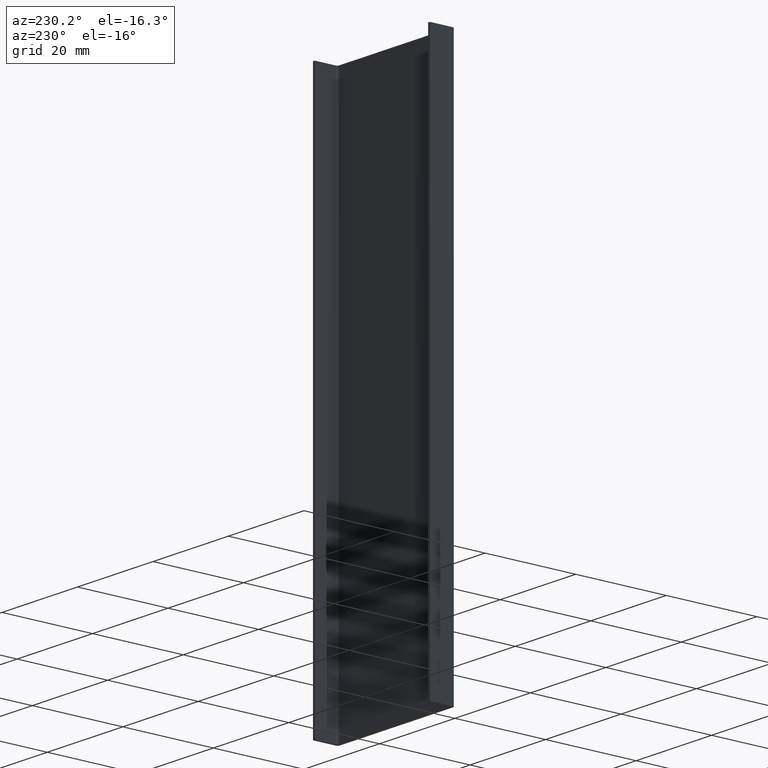
[diagram: clean part render]
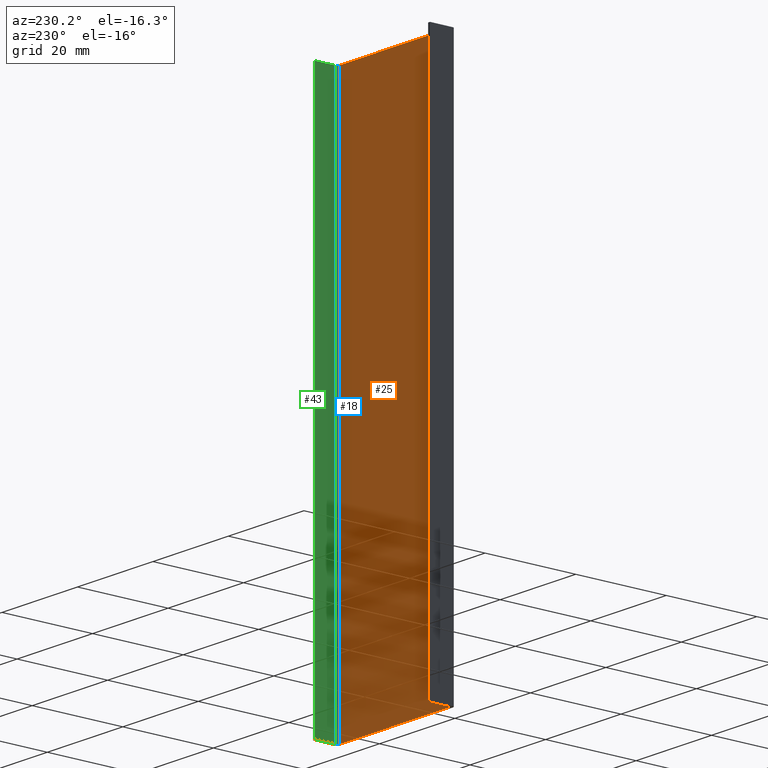
[diagram: same view with three faces highlighted in distinct colors, each labeled with its STEP entity id]
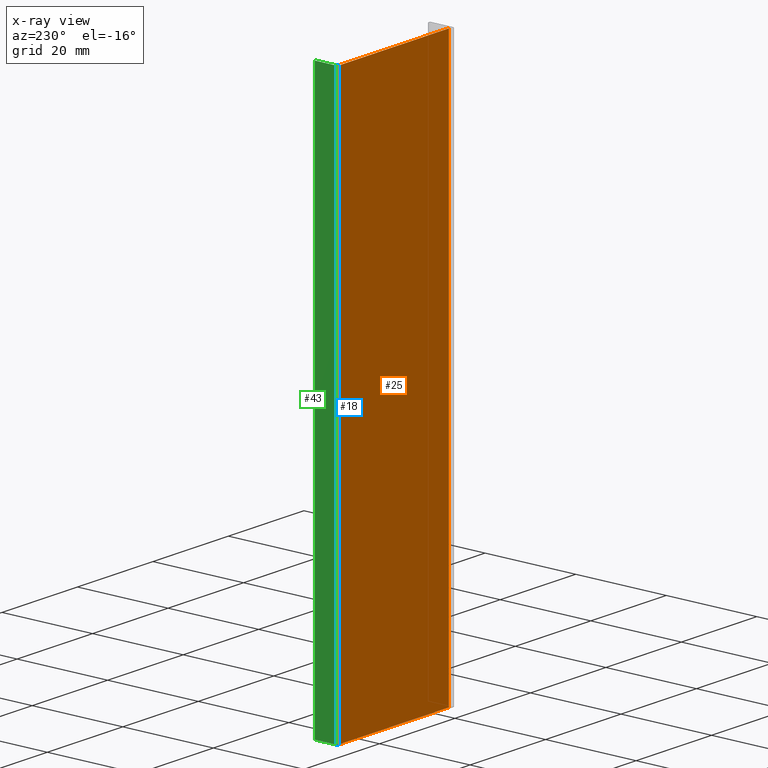
[diagram: x-ray of the same camera — body ghosted, the three highlighted faces saturated]
A machine part, auxiliary view with three faces highlighted in distinct colors.
The next image is the same camera in x-ray (body ghosted, the three faces saturated) — at least one of them is partly hidden behind the body in this view.
Their STEP definitions:

[orange] entity #25 — the highlighted planar face has unit normal (-0.0001, -1, 0).
#25 = ADVANCED_FACE ( 'NONE', ( #357 ), #360, .F. ) ;
#27 = EDGE_CURVE ( 'NONE', #239, #272, #376, .T. ) ;
#31 = EDGE_CURVE ( 'NONE', #261, #243, #413, .T. ) ;
#38 = EDGE_CURVE ( 'NONE', #239, #261, #433, .T. ) ;
#51 = EDGE_CURVE ( 'NONE', #272, #243, #470, .T. ) ;
#90 = VECTOR ( 'NONE', #415, 1000.000000000000000 ) ;
#91 = VECTOR ( 'NONE', #472, 1000.000000000000000 ) ;
#94 = VECTOR ( 'NONE', #380, 1000.000000000000000 ) ;
#133 = AXIS2_PLACEMENT_3D ( 'NONE', #385, #368, #361 ) ;
#139 = VECTOR ( 'NONE', #437, 1000.000000000000000 ) ;
#165 = EDGE_LOOP ( 'NONE', ( #186, #274, #289, #276 ) ) ;
#186 = ORIENTED_EDGE ( 'NONE', *, *, #51, .T. ) ;
#239 = VERTEX_POINT ( 'NONE', #480 ) ;
#243 = VERTEX_POINT ( 'NONE', #494 ) ;
#261 = VERTEX_POINT ( 'NONE', #499 ) ;
#272 = VERTEX_POINT ( 'NONE', #540 ) ;
#274 = ORIENTED_EDGE ( 'NONE', *, *, #31, .F. ) ;
#276 = ORIENTED_EDGE ( 'NONE', *, *, #27, .T. ) ;
#289 = ORIENTED_EDGE ( 'NONE', *, *, #38, .F. ) ;
#357 = FACE_OUTER_BOUND ( 'NONE', #165, .T. ) ;
#360 = PLANE ( 'NONE',  #133 ) ;
#361 = DIRECTION ( 'NONE',  ( 0.9999999964123750300, -8.470684716469725100E-005, 0.0000000000000000000 ) ) ;
#368 = DIRECTION ( 'NONE',  ( -8.470684716469725100E-005, -0.9999999964123750300, 0.0000000000000000000 ) ) ;
#376 = LINE ( 'NONE', #377, #94 ) ;
#377 = CARTESIAN_POINT ( 'NONE',  ( 29.50004224758863100, 0.9098789655736769800, 120.0000000000000000 ) ) ;
#380 = DIRECTION ( 'NONE',  ( -0.0000000000000000000, -0.0000000000000000000, -1.000000000000000000 ) ) ;
#385 = CARTESIAN_POINT ( 'NONE',  ( 29.50004224758863100, 0.9098789655736769800, 120.0000000000000000 ) ) ;
#400 = CARTESIAN_POINT ( 'NONE',  ( 0.5000423516297531900, 0.9123354641414698200, 120.0000000000000000 ) ) ;
#413 = LINE ( 'NONE', #400, #90 ) ;
#415 = DIRECTION ( 'NONE',  ( -0.0000000000000000000, -0.0000000000000000000, -1.000000000000000000 ) ) ;
#433 = LINE ( 'NONE', #434, #139 ) ;
#434 = CARTESIAN_POINT ( 'NONE',  ( 29.50004224758863100, 0.9098789655736769800, 120.0000000000000000 ) ) ;
#437 = DIRECTION ( 'NONE',  ( -0.9999999964123750300, 8.470684716469725100E-005, 0.0000000000000000000 ) ) ;
#470 = LINE ( 'NONE', #471, #91 ) ;
#471 = CARTESIAN_POINT ( 'NONE',  ( 29.50004224758863100, 0.9098789655736769800, 0.0000000000000000000 ) ) ;
#472 = DIRECTION ( 'NONE',  ( -0.9999999964123750300, 8.470684716469725100E-005, 0.0000000000000000000 ) ) ;
#480 = CARTESIAN_POINT ( 'NONE',  ( 29.50004224758863100, 0.9098789655736769800, 120.0000000000000000 ) ) ;
#494 = CARTESIAN_POINT ( 'NONE',  ( 0.5000423516297531900, 0.9123354641414698200, 0.0000000000000000000 ) ) ;
#499 = CARTESIAN_POINT ( 'NONE',  ( 0.5000423516297531900, 0.9123354641414698200, 120.0000000000000000 ) ) ;
#540 = CARTESIAN_POINT ( 'NONE',  ( 29.50004224758863100, 0.9098789655736769800, 0.0000000000000000000 ) ) ;

[blue] entity #18 — the highlighted cylindrical surface (edge-blend (fillet) strip) has radius 0.5 mm, axis along (-0, -0, -1).
#2 = EDGE_CURVE ( 'NONE', #240, #239, #76, .T. ) ;
#6 = EDGE_CURVE ( 'NONE', #240, #259, #160, .T. ) ;
#18 = ADVANCED_FACE ( 'NONE', ( #372 ), #359, .F. ) ;
#21 = EDGE_CURVE ( 'NONE', #259, #272, #107, .T. ) ;
#27 = EDGE_CURVE ( 'NONE', #239, #272, #376, .T. ) ;
#73 = AXIS2_PLACEMENT_3D ( 'NONE', #247, #326, #315 ) ;
#74 = VECTOR ( 'NONE', #309, 1000.000000000000000 ) ;
#76 = CIRCLE ( 'NONE', #73, 0.5000000000000004400 ) ;
#94 = VECTOR ( 'NONE', #380, 1000.000000000000000 ) ;
#95 = AXIS2_PLACEMENT_3D ( 'NONE', #387, #356, #345 ) ;
#99 = AXIS2_PLACEMENT_3D ( 'NONE', #343, #371, #354 ) ;
#107 = CIRCLE ( 'NONE', #99, 0.5000000000000004400 ) ;
#160 = LINE ( 'NONE', #341, #74 ) ;
#163 = EDGE_LOOP ( 'NONE', ( #207, #248, #266, #249 ) ) ;
#207 = ORIENTED_EDGE ( 'NONE', *, *, #21, .T. ) ;
#239 = VERTEX_POINT ( 'NONE', #480 ) ;
#240 = VERTEX_POINT ( 'NONE', #506 ) ;
#247 = CARTESIAN_POINT ( 'NONE',  ( 29.50008460101221200, 1.409878963779872500, 120.0000000000000000 ) ) ;
#248 = ORIENTED_EDGE ( 'NONE', *, *, #27, .F. ) ;
#249 = ORIENTED_EDGE ( 'NONE', *, *, #6, .T. ) ;
#259 = VERTEX_POINT ( 'NONE', #497 ) ;
#266 = ORIENTED_EDGE ( 'NONE', *, *, #2, .F. ) ;
#272 = VERTEX_POINT ( 'NONE', #540 ) ;
#309 = DIRECTION ( 'NONE',  ( -0.0000000000000000000, -0.0000000000000000000, -1.000000000000000000 ) ) ;
#315 = DIRECTION ( 'NONE',  ( 1.000000000000000000, 0.0000000000000000000, 0.0000000000000000000 ) ) ;
#326 = DIRECTION ( 'NONE',  ( -0.0000000000000000000, -0.0000000000000000000, -1.000000000000000000 ) ) ;
#341 = CARTESIAN_POINT ( 'NONE',  ( 30.00008459921840000, 1.409836610356288500, 120.0000000000000000 ) ) ;
#343 = CARTESIAN_POINT ( 'NONE',  ( 29.50008460101221200, 1.409878963779872500, 0.0000000000000000000 ) ) ;
#345 = DIRECTION ( 'NONE',  ( -1.000000000000000000, 0.0000000000000000000, 0.0000000000000000000 ) ) ;
#354 = DIRECTION ( 'NONE',  ( 1.000000000000000000, 0.0000000000000000000, 0.0000000000000000000 ) ) ;
#356 = DIRECTION ( 'NONE',  ( -0.0000000000000000000, -0.0000000000000000000, -1.000000000000000000 ) ) ;
#359 = CYLINDRICAL_SURFACE ( 'NONE', #95, 0.5000000000000004400 ) ;
#371 = DIRECTION ( 'NONE',  ( -0.0000000000000000000, -0.0000000000000000000, -1.000000000000000000 ) ) ;
#372 = FACE_OUTER_BOUND ( 'NONE', #163, .T. ) ;
#376 = LINE ( 'NONE', #377, #94 ) ;
#377 = CARTESIAN_POINT ( 'NONE',  ( 29.50004224758863100, 0.9098789655736769800, 120.0000000000000000 ) ) ;
#380 = DIRECTION ( 'NONE',  ( -0.0000000000000000000, -0.0000000000000000000, -1.000000000000000000 ) ) ;
#387 = CARTESIAN_POINT ( 'NONE',  ( 29.50008460101221200, 1.409878963779872500, 120.0000000000000000 ) ) ;
#480 = CARTESIAN_POINT ( 'NONE',  ( 29.50004224758863100, 0.9098789655736769800, 120.0000000000000000 ) ) ;
#497 = CARTESIAN_POINT ( 'NONE',  ( 30.00008459921840000, 1.409836610356288500, 0.0000000000000000000 ) ) ;
#506 = CARTESIAN_POINT ( 'NONE',  ( 30.00008459921840000, 1.409836610356288500, 120.0000000000000000 ) ) ;
#540 = CARTESIAN_POINT ( 'NONE',  ( 29.50004224758863100, 0.9098789655736769800, 0.0000000000000000000 ) ) ;

[green] entity #43 — the highlighted planar face has unit normal (1, -0.0001, 0).
#1 = EDGE_CURVE ( 'NONE', #295, #270, #167, .T. ) ;
#6 = EDGE_CURVE ( 'NONE', #240, #259, #160, .T. ) ;
#8 = EDGE_CURVE ( 'NONE', #270, #259, #330, .T. ) ;
#41 = EDGE_CURVE ( 'NONE', #295, #240, #428, .T. ) ;
#43 = ADVANCED_FACE ( 'NONE', ( #426 ), #429, .F. ) ;
#74 = VECTOR ( 'NONE', #309, 1000.000000000000000 ) ;
#78 = VECTOR ( 'NONE', #324, 1000.000000000000100 ) ;
#87 = VECTOR ( 'NONE', #285, 1000.000000000000000 ) ;
#115 = AXIS2_PLACEMENT_3D ( 'NONE', #431, #432, #446 ) ;
#142 = VECTOR ( 'NONE', #421, 1000.000000000000100 ) ;
#160 = LINE ( 'NONE', #341, #74 ) ;
#167 = LINE ( 'NONE', #242, #87 ) ;
#168 = EDGE_LOOP ( 'NONE', ( #258, #209, #246, #286 ) ) ;
#209 = ORIENTED_EDGE ( 'NONE', *, *, #6, .F. ) ;
#240 = VERTEX_POINT ( 'NONE', #506 ) ;
#242 = CARTESIAN_POINT ( 'NONE',  ( 30.00046662709908700, 5.919836594176119100, 120.0000000000000000 ) ) ;
#246 = ORIENTED_EDGE ( 'NONE', *, *, #41, .F. ) ;
#258 = ORIENTED_EDGE ( 'NONE', *, *, #8, .T. ) ;
#259 = VERTEX_POINT ( 'NONE', #497 ) ;
#270 = VERTEX_POINT ( 'NONE', #537 ) ;
#285 = DIRECTION ( 'NONE',  ( -0.0000000000000000000, -0.0000000000000000000, -1.000000000000000000 ) ) ;
#286 = ORIENTED_EDGE ( 'NONE', *, *, #1, .T. ) ;
#295 = VERTEX_POINT ( 'NONE', #541 ) ;
#309 = DIRECTION ( 'NONE',  ( -0.0000000000000000000, -0.0000000000000000000, -1.000000000000000000 ) ) ;
#311 = CARTESIAN_POINT ( 'NONE',  ( 30.00046662709908700, 5.919836594176119100, 0.0000000000000000000 ) ) ;
#324 = DIRECTION ( 'NONE',  ( -8.470684716139887800E-005, -0.9999999964123750300, 0.0000000000000000000 ) ) ;
#330 = LINE ( 'NONE', #311, #78 ) ;
#341 = CARTESIAN_POINT ( 'NONE',  ( 30.00008459921840000, 1.409836610356288500, 120.0000000000000000 ) ) ;
#420 = CARTESIAN_POINT ( 'NONE',  ( 30.00046662709908700, 5.919836594176119100, 120.0000000000000000 ) ) ;
#421 = DIRECTION ( 'NONE',  ( -8.470684716139887800E-005, -0.9999999964123750300, 0.0000000000000000000 ) ) ;
#426 = FACE_OUTER_BOUND ( 'NONE', #168, .T. ) ;
#428 = LINE ( 'NONE', #420, #142 ) ;
#429 = PLANE ( 'NONE',  #115 ) ;
#431 = CARTESIAN_POINT ( 'NONE',  ( 30.00046662709908700, 5.919836594176119100, 120.0000000000000000 ) ) ;
#432 = DIRECTION ( 'NONE',  ( 0.9999999964123750300, -8.470684716139887800E-005, 0.0000000000000000000 ) ) ;
#446 = DIRECTION ( 'NONE',  ( 8.470684716139887800E-005, 0.9999999964123750300, 0.0000000000000000000 ) ) ;
#497 = CARTESIAN_POINT ( 'NONE',  ( 30.00008459921840000, 1.409836610356288500, 0.0000000000000000000 ) ) ;
#506 = CARTESIAN_POINT ( 'NONE',  ( 30.00008459921840000, 1.409836610356288500, 120.0000000000000000 ) ) ;
#537 = CARTESIAN_POINT ( 'NONE',  ( 30.00046662709908700, 5.919836594176119100, 0.0000000000000000000 ) ) ;
#541 = CARTESIAN_POINT ( 'NONE',  ( 30.00046662709908700, 5.919836594176119100, 120.0000000000000000 ) ) ;